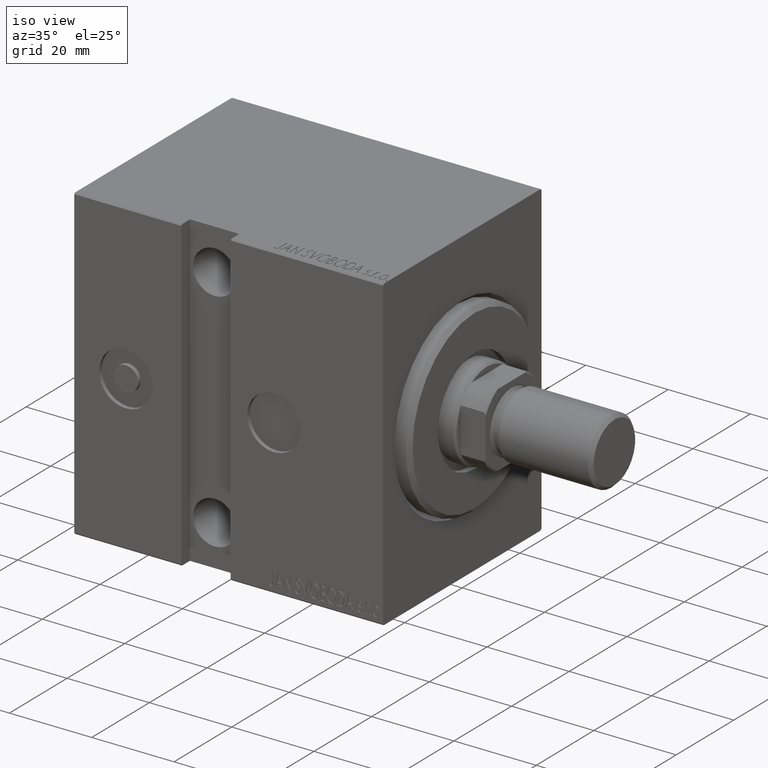
[diagram: clean part render]
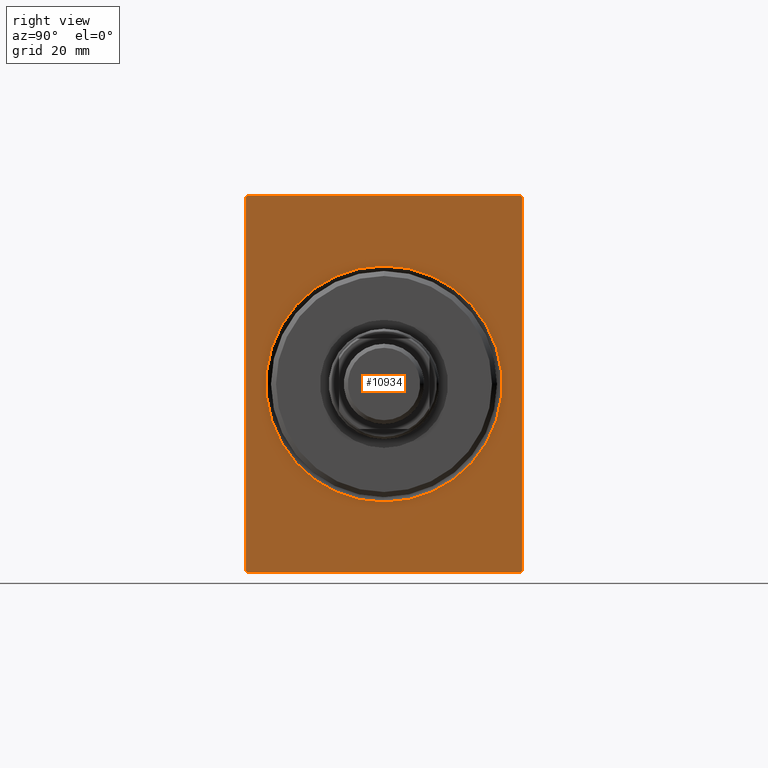
[diagram: tour spotlight — one face highlighted and labeled with its STEP entity id]
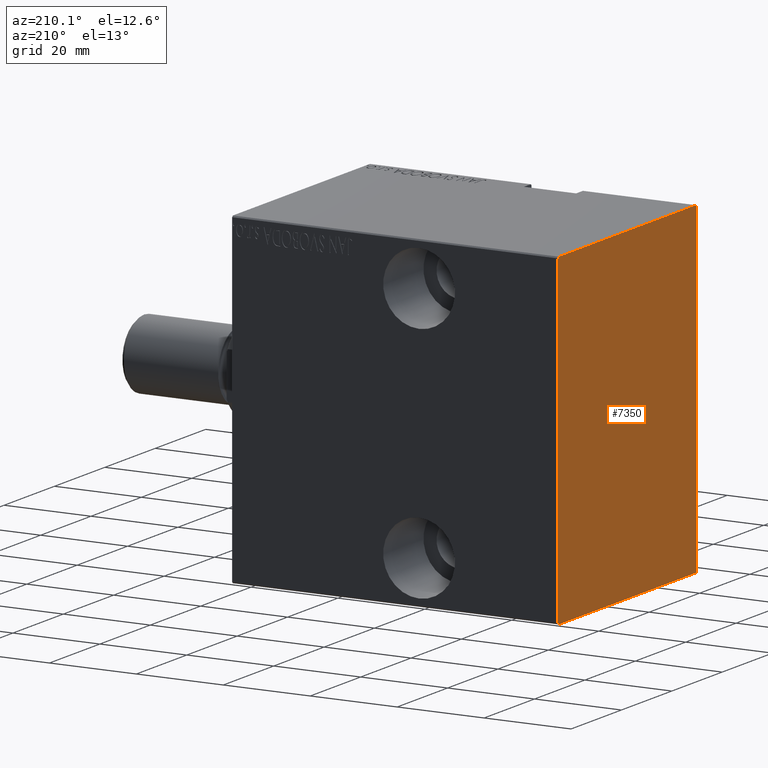
[diagram: tour spotlight — one face highlighted and labeled with its STEP entity id]
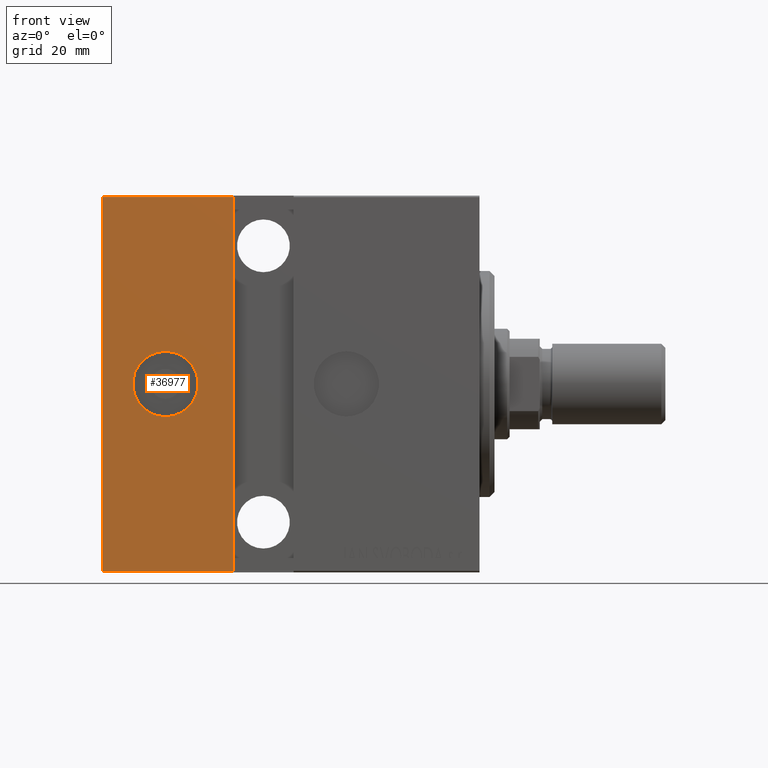
[diagram: tour spotlight — one face highlighted and labeled with its STEP entity id]
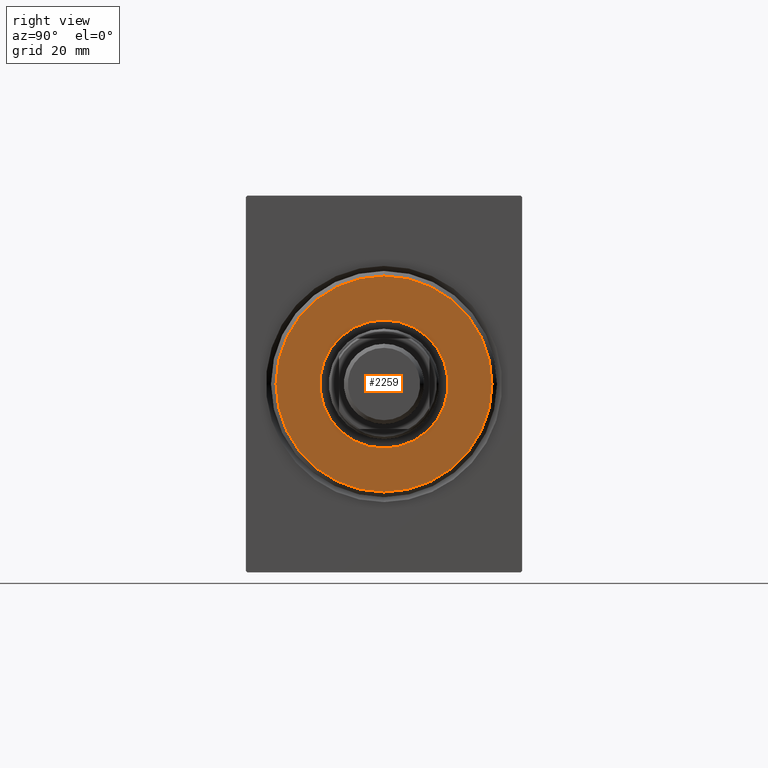
[diagram: tour spotlight — one face highlighted and labeled with its STEP entity id]
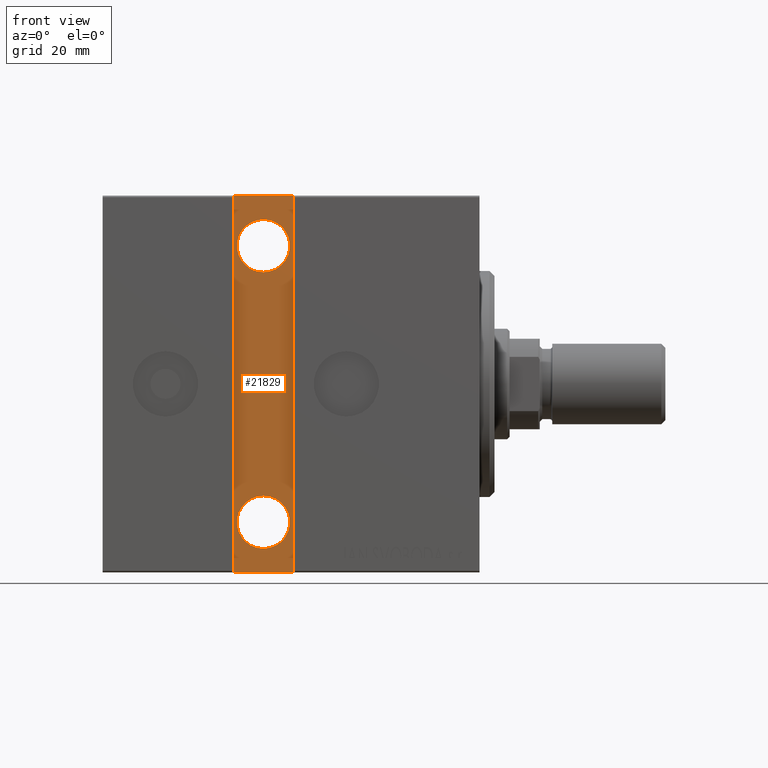
[diagram: tour spotlight — one face highlighted and labeled with its STEP entity id]
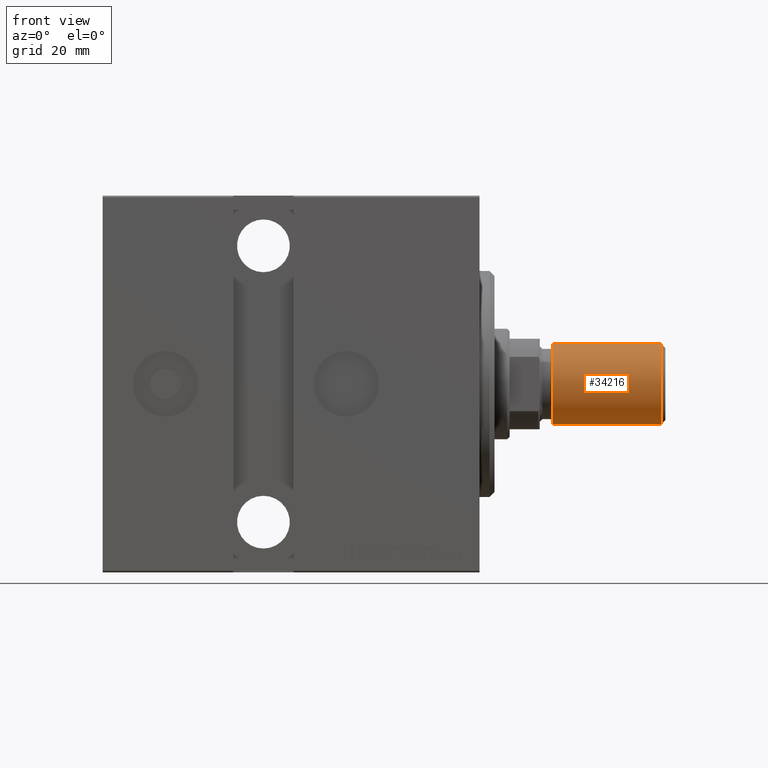
[diagram: tour spotlight — one face highlighted and labeled with its STEP entity id]
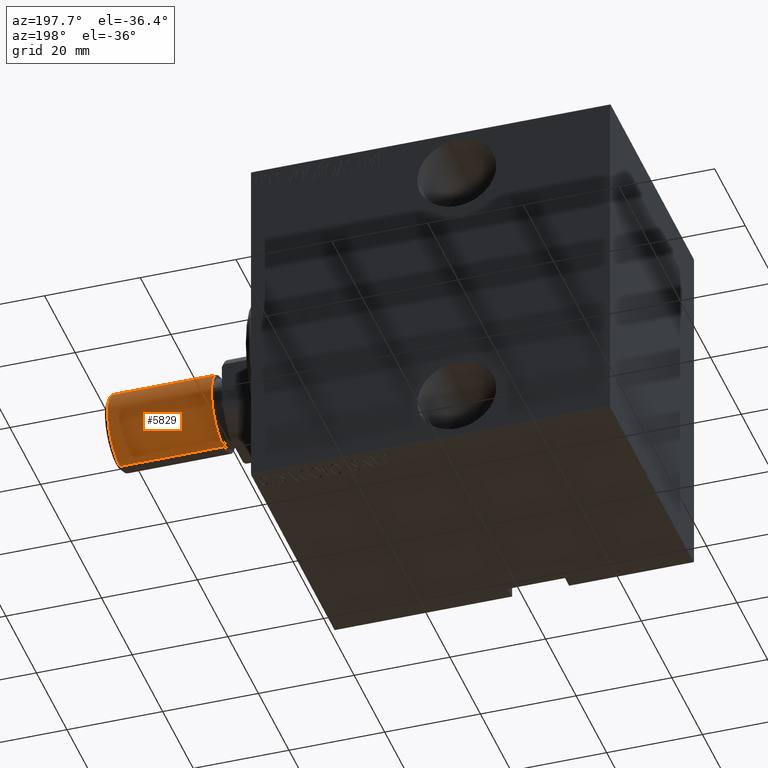
[diagram: tour spotlight — one face highlighted and labeled with its STEP entity id]
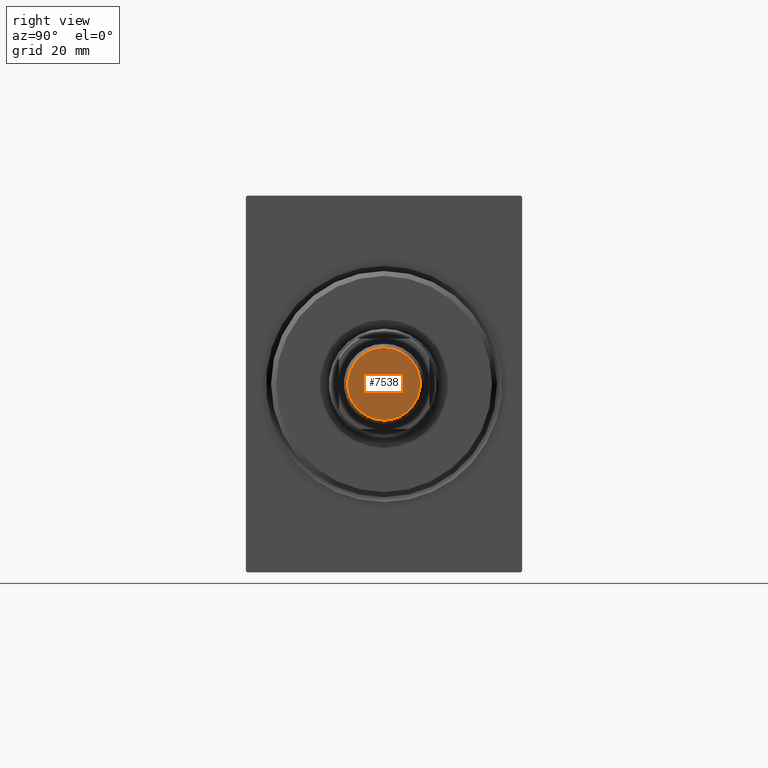
[diagram: tour spotlight — one face highlighted and labeled with its STEP entity id]
A machine part: a face-by-face anatomy tour. The part has 849 B-rep faces; the first image is the clean iso view, then the 8 largest visible faces are spotlighted one at a time (largest first), each with its STEP entity span.

Face 1 — right view, entity #10934. In plain terms, the highlighted planar face has unit normal (-1, 0, 0).
Definition (entity closure, byte-faithful):
#335 = EDGE_CURVE ( 'NONE', #26529, #32329, #24672, .T. ) ;
#1314 = CIRCLE ( 'NONE', #28339, 23.50000000000000355 ) ;
#1764 = CARTESIAN_POINT ( 'NONE',  ( 0.000000000000000000, -27.50000000000000000, -37.19999999999999574 ) ) ;
#1855 = DIRECTION ( 'NONE',  ( 0.000000000000000000, 0.000000000000000000, -1.000000000000000000 ) ) ;
#2099 = CARTESIAN_POINT ( 'NONE',  ( 0.000000000000000000, 2.877919977996280715E-15, -23.50000000000000355 ) ) ;
#2101 = CARTESIAN_POINT ( 'NONE',  ( 0.000000000000000000, 27.50000000000000355, -37.50000000000000711 ) ) ;
#2388 = DIRECTION ( 'NONE',  ( 0.000000000000000000, 1.000000000000000000, 0.000000000000000000 ) ) ;
#2513 = CARTESIAN_POINT ( 'NONE',  ( 0.000000000000000000, -27.50000000000000000, 37.49999999999999289 ) ) ;
#2559 = DIRECTION ( 'NONE',  ( 0.000000000000000000, 0.000000000000000000, -1.000000000000000000 ) ) ;
#2756 = LINE ( 'NONE', #2101, #35968 ) ;
#2776 = FACE_OUTER_BOUND ( 'NONE', #27650, .T. ) ;
#2992 = LINE ( 'NONE', #29488, #7590 ) ;
#3783 = CARTESIAN_POINT ( 'NONE',  ( 0.000000000000000000, 0.000000000000000000, 0.000000000000000000 ) ) ;
#3858 = CARTESIAN_POINT ( 'NONE',  ( 0.000000000000000000, -27.50000000000000000, 37.19999999999999574 ) ) ;
#4034 = AXIS2_PLACEMENT_3D ( 'NONE', #3783, #33740, #20085 ) ;
#4245 = ORIENTED_EDGE ( 'NONE', *, *, #37723, .T. ) ;
#5083 = ORIENTED_EDGE ( 'NONE', *, *, #32997, .T. ) ;
#5126 = ORIENTED_EDGE ( 'NONE', *, *, #335, .F. ) ;
#5314 = CARTESIAN_POINT ( 'NONE',  ( 0.000000000000000000, 27.20000000000000284, 37.50000000000000711 ) ) ;
#5351 = LINE ( 'NONE', #38338, #22052 ) ;
#5545 = LINE ( 'NONE', #19422, #33931 ) ;
#5777 = ORIENTED_EDGE ( 'NONE', *, *, #11828, .T. ) ;
#6204 = VERTEX_POINT ( 'NONE', #39320 ) ;
#6483 = EDGE_CURVE ( 'NONE', #39862, #36411, #26264, .T. ) ;
#7104 = ORIENTED_EDGE ( 'NONE', *, *, #35398, .T. ) ;
#7229 = EDGE_CURVE ( 'NONE', #6204, #36411, #37370, .T. ) ;
#7590 = VECTOR ( 'NONE', #42715, 999.9999999999998863 ) ;
#7991 = DIRECTION ( 'NONE',  ( -0.000000000000000000, 0.7071067811865474617, -0.7071067811865474617 ) ) ;
#9986 = CARTESIAN_POINT ( 'NONE',  ( 0.000000000000000000, -27.20000000000000284, 37.49999999999999289 ) ) ;
#10157 = CARTESIAN_POINT ( 'NONE',  ( 0.000000000000000000, 0.000000000000000000, 0.000000000000000000 ) ) ;
#10934 = ADVANCED_FACE ( 'NONE', ( #42271, #2776 ), #12963, .F. ) ;
#11286 = VERTEX_POINT ( 'NONE', #31344 ) ;
#11760 = CARTESIAN_POINT ( 'NONE',  ( 0.000000000000000000, 0.000000000000000000, 23.50000000000000355 ) ) ;
#11828 = EDGE_CURVE ( 'NONE', #26529, #37636, #2992, .T. ) ;
#12370 = CIRCLE ( 'NONE', #4034, 23.50000000000000355 ) ;
#12963 = PLANE ( 'NONE',  #13909 ) ;
#13909 = AXIS2_PLACEMENT_3D ( 'NONE', #10157, #32518, #2559 ) ;
#14396 = EDGE_LOOP ( 'NONE', ( #37574, #7104 ) ) ;
#15118 = DIRECTION ( 'NONE',  ( -0.000000000000000000, -0.7071067811865474617, 0.7071067811865474617 ) ) ;
#15546 = VECTOR ( 'NONE', #1855, 1000.000000000000000 ) ;
#15740 = DIRECTION ( 'NONE',  ( 0.000000000000000000, -1.000000000000000000, -2.523234146875355998E-16 ) ) ;
#16222 = CARTESIAN_POINT ( 'NONE',  ( 0.000000000000000000, 27.20000000000000284, 37.50000000000000711 ) ) ;
#17201 = CARTESIAN_POINT ( 'NONE',  ( 0.000000000000000000, 27.50000000000000355, -37.19999999999999574 ) ) ;
#17935 = EDGE_CURVE ( 'NONE', #36242, #37636, #5545, .T. ) ;
#19422 = CARTESIAN_POINT ( 'NONE',  ( 0.000000000000000000, 27.49999999999999645, 37.50000000000000711 ) ) ;
#19457 = DIRECTION ( 'NONE',  ( 1.000000000000000000, 0.000000000000000000, 0.000000000000000000 ) ) ;
#19787 = VERTEX_POINT ( 'NONE', #2099 ) ;
#20043 = VERTEX_POINT ( 'NONE', #11760 ) ;
#20085 = DIRECTION ( 'NONE',  ( 0.000000000000000000, 0.000000000000000000, -1.000000000000000000 ) ) ;
#22052 = VECTOR ( 'NONE', #15118, 1000.000000000000114 ) ;
#23035 = VECTOR ( 'NONE', #2388, 1000.000000000000000 ) ;
#23462 = CARTESIAN_POINT ( 'NONE',  ( 0.000000000000000000, -27.19999999999999218, -37.50000000000000711 ) ) ;
#23492 = VECTOR ( 'NONE', #7991, 1000.000000000000114 ) ;
#24672 = LINE ( 'NONE', #2513, #15546 ) ;
#26264 = LINE ( 'NONE', #41880, #23035 ) ;
#26477 = ORIENTED_EDGE ( 'NONE', *, *, #33828, .F. ) ;
#26529 = VERTEX_POINT ( 'NONE', #3858 ) ;
#26618 = CARTESIAN_POINT ( 'NONE',  ( 0.000000000000000000, 0.000000000000000000, 0.000000000000000000 ) ) ;
#26819 = ORIENTED_EDGE ( 'NONE', *, *, #7229, .T. ) ;
#27650 = EDGE_LOOP ( 'NONE', ( #32471, #4245, #26477, #26819, #29920, #5083, #5126, #5777 ) ) ;
#28339 = AXIS2_PLACEMENT_3D ( 'NONE', #26618, #19457, #38985 ) ;
#29488 = CARTESIAN_POINT ( 'NONE',  ( 0.000000000000000000, -27.50000000000000000, 37.19999999999999574 ) ) ;
#29920 = ORIENTED_EDGE ( 'NONE', *, *, #6483, .F. ) ;
#31344 = CARTESIAN_POINT ( 'NONE',  ( 0.000000000000000000, 27.49999999999999645, 37.20000000000000995 ) ) ;
#32329 = VERTEX_POINT ( 'NONE', #1764 ) ;
#32471 = ORIENTED_EDGE ( 'NONE', *, *, #17935, .F. ) ;
#32518 = DIRECTION ( 'NONE',  ( 1.000000000000000000, 0.000000000000000000, 0.000000000000000000 ) ) ;
#32997 = EDGE_CURVE ( 'NONE', #39862, #32329, #5351, .T. ) ;
#33740 = DIRECTION ( 'NONE',  ( 1.000000000000000000, 0.000000000000000000, 0.000000000000000000 ) ) ;
#33828 = EDGE_CURVE ( 'NONE', #6204, #11286, #2756, .T. ) ;
#33931 = VECTOR ( 'NONE', #15740, 1000.000000000000000 ) ;
#34058 = LINE ( 'NONE', #5314, #23492 ) ;
#35398 = EDGE_CURVE ( 'NONE', #19787, #20043, #1314, .T. ) ;
#35968 = VECTOR ( 'NONE', #42467, 1000.000000000000000 ) ;
#36242 = VERTEX_POINT ( 'NONE', #16222 ) ;
#36411 = VERTEX_POINT ( 'NONE', #41114 ) ;
#36917 = VECTOR ( 'NONE', #40826, 1000.000000000000000 ) ;
#37370 = LINE ( 'NONE', #17201, #36917 ) ;
#37574 = ORIENTED_EDGE ( 'NONE', *, *, #37859, .T. ) ;
#37636 = VERTEX_POINT ( 'NONE', #9986 ) ;
#37723 = EDGE_CURVE ( 'NONE', #36242, #11286, #34058, .T. ) ;
#37859 = EDGE_CURVE ( 'NONE', #20043, #19787, #12370, .T. ) ;
#38338 = CARTESIAN_POINT ( 'NONE',  ( 0.000000000000000000, -27.19999999999999218, -37.50000000000000711 ) ) ;
#38985 = DIRECTION ( 'NONE',  ( 0.000000000000000000, 0.000000000000000000, -1.000000000000000000 ) ) ;
#39320 = CARTESIAN_POINT ( 'NONE',  ( 0.000000000000000000, 27.50000000000000355, -37.19999999999999574 ) ) ;
#39862 = VERTEX_POINT ( 'NONE', #23462 ) ;
#40826 = DIRECTION ( 'NONE',  ( 0.000000000000000000, -0.7071067811865434649, -0.7071067811865516806 ) ) ;
#41114 = CARTESIAN_POINT ( 'NONE',  ( 0.000000000000000000, 27.19999999999999929, -37.50000000000000711 ) ) ;
#41880 = CARTESIAN_POINT ( 'NONE',  ( 0.000000000000000000, -27.50000000000000000, -37.50000000000000711 ) ) ;
#42271 = FACE_BOUND ( 'NONE', #14396, .T. ) ;
#42467 = DIRECTION ( 'NONE',  ( 0.000000000000000000, -9.251858538542970348E-17, 1.000000000000000000 ) ) ;
#42715 = DIRECTION ( 'NONE',  ( -0.000000000000000000, 0.7071067811865515695, 0.7071067811865435759 ) ) ;

Face 2 — auxiliary view, entity #7350. In plain terms, the highlighted planar face has unit normal (-1, 0, 0).
Definition (entity closure, byte-faithful):
#884 = LINE ( 'NONE', #13924, #16542 ) ;
#1656 = VERTEX_POINT ( 'NONE', #5459 ) ;
#3898 = CARTESIAN_POINT ( 'NONE',  ( 75.00000000000000000, 27.49999999999999645, 37.50000000000000711 ) ) ;
#4580 = PLANE ( 'NONE',  #23754 ) ;
#4880 = DIRECTION ( 'NONE',  ( -0.000000000000000000, -0.7071067811865474617, 0.7071067811865474617 ) ) ;
#5224 = CARTESIAN_POINT ( 'NONE',  ( 75.00000000000000000, 0.000000000000000000, 0.000000000000000000 ) ) ;
#5225 = CARTESIAN_POINT ( 'NONE',  ( 75.00000000000000000, 27.50000000000000355, -37.19999999999999574 ) ) ;
#5459 = CARTESIAN_POINT ( 'NONE',  ( 75.00000000000000000, -27.50000000000000000, -37.19999999999999574 ) ) ;
#6072 = ORIENTED_EDGE ( 'NONE', *, *, #26331, .T. ) ;
#6209 = ORIENTED_EDGE ( 'NONE', *, *, #18075, .T. ) ;
#6434 = DIRECTION ( 'NONE',  ( 0.000000000000000000, -9.251858538542970348E-17, 1.000000000000000000 ) ) ;
#6565 = DIRECTION ( 'NONE',  ( -0.000000000000000000, 0.7071067811865434649, 0.7071067811865516806 ) ) ;
#6838 = DIRECTION ( 'NONE',  ( 0.000000000000000000, 0.000000000000000000, -1.000000000000000000 ) ) ;
#7350 = ADVANCED_FACE ( 'NONE', ( #11945 ), #4580, .T. ) ;
#8035 = CARTESIAN_POINT ( 'NONE',  ( 75.00000000000000000, 27.20000000000000284, 37.50000000000000711 ) ) ;
#8312 = VERTEX_POINT ( 'NONE', #39605 ) ;
#8721 = EDGE_LOOP ( 'NONE', ( #6072, #9455, #35467, #9899, #39470, #32428, #6209, #30997 ) ) ;
#9455 = ORIENTED_EDGE ( 'NONE', *, *, #37398, .T. ) ;
#9649 = VERTEX_POINT ( 'NONE', #15977 ) ;
#9899 = ORIENTED_EDGE ( 'NONE', *, *, #22792, .T. ) ;
#10119 = CARTESIAN_POINT ( 'NONE',  ( 75.00000000000000000, 27.50000000000000355, -37.50000000000000711 ) ) ;
#10163 = CARTESIAN_POINT ( 'NONE',  ( 75.00000000000000000, -32.34999999999983800, 32.35000000000021458 ) ) ;
#10845 = LINE ( 'NONE', #3898, #17953 ) ;
#11728 = DIRECTION ( 'NONE',  ( 0.000000000000000000, 0.000000000000000000, -1.000000000000000000 ) ) ;
#11796 = EDGE_CURVE ( 'NONE', #19923, #9649, #39229, .T. ) ;
#11945 = FACE_OUTER_BOUND ( 'NONE', #8721, .T. ) ;
#12188 = VECTOR ( 'NONE', #35785, 1000.000000000000000 ) ;
#13137 = VECTOR ( 'NONE', #6838, 1000.000000000000000 ) ;
#13687 = CARTESIAN_POINT ( 'NONE',  ( 75.00000000000000000, -32.34999999999999432, -32.34999999999999432 ) ) ;
#13924 = CARTESIAN_POINT ( 'NONE',  ( 75.00000000000000000, 32.35000000000016485, -32.34999999999978826 ) ) ;
#14883 = VECTOR ( 'NONE', #4880, 1000.000000000000114 ) ;
#15781 = CARTESIAN_POINT ( 'NONE',  ( 75.00000000000000000, -27.20000000000000284, 37.49999999999999289 ) ) ;
#15977 = CARTESIAN_POINT ( 'NONE',  ( 75.00000000000000000, -27.50000000000000000, 37.19999999999999574 ) ) ;
#16542 = VECTOR ( 'NONE', #6565, 1000.000000000000000 ) ;
#17953 = VECTOR ( 'NONE', #20617, 1000.000000000000000 ) ;
#18075 = EDGE_CURVE ( 'NONE', #9649, #1656, #39813, .T. ) ;
#19343 = VERTEX_POINT ( 'NONE', #39085 ) ;
#19498 = DIRECTION ( 'NONE',  ( 0.000000000000000000, -0.7071067811865515695, -0.7071067811865435759 ) ) ;
#19923 = VERTEX_POINT ( 'NONE', #15781 ) ;
#20617 = DIRECTION ( 'NONE',  ( 0.000000000000000000, -1.000000000000000000, -2.523234146875355998E-16 ) ) ;
#21135 = EDGE_CURVE ( 'NONE', #1656, #8312, #36494, .T. ) ;
#21521 = DIRECTION ( 'NONE',  ( 1.000000000000000000, 0.000000000000000000, 0.000000000000000000 ) ) ;
#22025 = CARTESIAN_POINT ( 'NONE',  ( 75.00000000000000000, 32.35000000000000142, 32.35000000000000142 ) ) ;
#22792 = EDGE_CURVE ( 'NONE', #31594, #23297, #28540, .T. ) ;
#23297 = VERTEX_POINT ( 'NONE', #8035 ) ;
#23754 = AXIS2_PLACEMENT_3D ( 'NONE', #5224, #21521, #11728 ) ;
#24063 = VERTEX_POINT ( 'NONE', #5225 ) ;
#24549 = EDGE_CURVE ( 'NONE', #24063, #31594, #36388, .T. ) ;
#26331 = EDGE_CURVE ( 'NONE', #8312, #19343, #40784, .T. ) ;
#26715 = VECTOR ( 'NONE', #6434, 1000.000000000000000 ) ;
#26990 = VECTOR ( 'NONE', #19498, 999.9999999999998863 ) ;
#28540 = LINE ( 'NONE', #22025, #14883 ) ;
#29339 = DIRECTION ( 'NONE',  ( -0.000000000000000000, 0.7071067811865474617, -0.7071067811865474617 ) ) ;
#30997 = ORIENTED_EDGE ( 'NONE', *, *, #21135, .T. ) ;
#31594 = VERTEX_POINT ( 'NONE', #35659 ) ;
#32428 = ORIENTED_EDGE ( 'NONE', *, *, #11796, .T. ) ;
#35467 = ORIENTED_EDGE ( 'NONE', *, *, #24549, .T. ) ;
#35571 = CARTESIAN_POINT ( 'NONE',  ( 75.00000000000000000, -27.50000000000000000, -37.50000000000000711 ) ) ;
#35659 = CARTESIAN_POINT ( 'NONE',  ( 75.00000000000000000, 27.49999999999999645, 37.20000000000000995 ) ) ;
#35785 = DIRECTION ( 'NONE',  ( 0.000000000000000000, 1.000000000000000000, 0.000000000000000000 ) ) ;
#36388 = LINE ( 'NONE', #10119, #26715 ) ;
#36391 = VECTOR ( 'NONE', #29339, 1000.000000000000114 ) ;
#36494 = LINE ( 'NONE', #13687, #36391 ) ;
#36579 = CARTESIAN_POINT ( 'NONE',  ( 75.00000000000000000, -27.50000000000000000, 37.49999999999999289 ) ) ;
#37398 = EDGE_CURVE ( 'NONE', #19343, #24063, #884, .T. ) ;
#39085 = CARTESIAN_POINT ( 'NONE',  ( 75.00000000000000000, 27.19999999999999929, -37.50000000000000711 ) ) ;
#39229 = LINE ( 'NONE', #10163, #26990 ) ;
#39350 = EDGE_CURVE ( 'NONE', #23297, #19923, #10845, .T. ) ;
#39470 = ORIENTED_EDGE ( 'NONE', *, *, #39350, .T. ) ;
#39605 = CARTESIAN_POINT ( 'NONE',  ( 75.00000000000000000, -27.19999999999999218, -37.50000000000000711 ) ) ;
#39813 = LINE ( 'NONE', #36579, #13137 ) ;
#40784 = LINE ( 'NONE', #35571, #12188 ) ;

Face 3 — front view, entity #36977. In plain terms, the highlighted planar face has unit normal (-0, 1, -0).
Definition (entity closure, byte-faithful):
#85 = DIRECTION ( 'NONE',  ( 0.000000000000000000, 9.251858538542970348E-17, -1.000000000000000000 ) ) ;
#90 = DIRECTION ( 'NONE',  ( 6.162975822039154730E-33, 1.000000000000000000, 8.767205616560546857E-17 ) ) ;
#3620 = CARTESIAN_POINT ( 'NONE',  ( 75.00000000000000000, 27.49999999999999645, 37.20000000000000995 ) ) ;
#4506 = CIRCLE ( 'NONE', #21151, 6.499999999999994671 ) ;
#5225 = CARTESIAN_POINT ( 'NONE',  ( 75.00000000000000000, 27.50000000000000355, -37.19999999999999574 ) ) ;
#5324 = VERTEX_POINT ( 'NONE', #25884 ) ;
#5367 = ORIENTED_EDGE ( 'NONE', *, *, #23560, .F. ) ;
#6434 = DIRECTION ( 'NONE',  ( 0.000000000000000000, -9.251858538542970348E-17, 1.000000000000000000 ) ) ;
#7978 = ORIENTED_EDGE ( 'NONE', *, *, #18468, .F. ) ;
#8457 = EDGE_LOOP ( 'NONE', ( #37175, #24392, #7978, #32414 ) ) ;
#10119 = CARTESIAN_POINT ( 'NONE',  ( 75.00000000000000000, 27.50000000000000355, -37.50000000000000711 ) ) ;
#13152 = CARTESIAN_POINT ( 'NONE',  ( 75.00000000000000000, 27.50000000000000355, -37.19999999999999574 ) ) ;
#14180 = FACE_BOUND ( 'NONE', #31067, .T. ) ;
#14641 = EDGE_CURVE ( 'NONE', #5324, #31594, #33380, .T. ) ;
#16596 = PLANE ( 'NONE',  #25614 ) ;
#16790 = EDGE_CURVE ( 'NONE', #28130, #19236, #38061, .T. ) ;
#16813 = VERTEX_POINT ( 'NONE', #32930 ) ;
#16867 = DIRECTION ( 'NONE',  ( 0.000000000000000000, 0.000000000000000000, 1.000000000000000000 ) ) ;
#17267 = DIRECTION ( 'NONE',  ( -1.000000000000000000, 0.000000000000000000, 0.000000000000000000 ) ) ;
#18468 = EDGE_CURVE ( 'NONE', #5324, #16813, #29768, .T. ) ;
#19236 = VERTEX_POINT ( 'NONE', #25214 ) ;
#19331 = DIRECTION ( 'NONE',  ( -9.251858538542978977E-17, -0.000000000000000000, -1.000000000000000000 ) ) ;
#20286 = CARTESIAN_POINT ( 'NONE',  ( 75.00000000000000000, 27.50000000000000355, -37.50000000000000711 ) ) ;
#21151 = AXIS2_PLACEMENT_3D ( 'NONE', #32880, #90, #33097 ) ;
#22393 = CARTESIAN_POINT ( 'NONE',  ( 48.99999999999999289, 27.50000000000000000, -37.50000000000000711 ) ) ;
#23545 = FACE_OUTER_BOUND ( 'NONE', #8457, .T. ) ;
#23560 = EDGE_CURVE ( 'NONE', #19236, #28130, #4506, .T. ) ;
#24063 = VERTEX_POINT ( 'NONE', #5225 ) ;
#24392 = ORIENTED_EDGE ( 'NONE', *, *, #41374, .T. ) ;
#24549 = EDGE_CURVE ( 'NONE', #24063, #31594, #36388, .T. ) ;
#25214 = CARTESIAN_POINT ( 'NONE',  ( 62.49999999999999289, 27.50000000000000000, -6.499999999999992006 ) ) ;
#25614 = AXIS2_PLACEMENT_3D ( 'NONE', #20286, #29847, #85 ) ;
#25653 = VECTOR ( 'NONE', #19331, 1000.000000000000000 ) ;
#25884 = CARTESIAN_POINT ( 'NONE',  ( 49.00000000000000000, 27.50000000000000000, 37.20000000000000995 ) ) ;
#26715 = VECTOR ( 'NONE', #6434, 1000.000000000000000 ) ;
#26845 = CARTESIAN_POINT ( 'NONE',  ( 62.49999999999999289, 27.50000000000000000, 2.544261098099316809E-15 ) ) ;
#28130 = VERTEX_POINT ( 'NONE', #32378 ) ;
#28287 = VECTOR ( 'NONE', #30122, 1000.000000000000000 ) ;
#29768 = LINE ( 'NONE', #22393, #25653 ) ;
#29847 = DIRECTION ( 'NONE',  ( 0.000000000000000000, -1.000000000000000000, -9.251858538542970348E-17 ) ) ;
#30122 = DIRECTION ( 'NONE',  ( 1.000000000000000000, 0.000000000000000000, 0.000000000000000000 ) ) ;
#31067 = EDGE_LOOP ( 'NONE', ( #35006, #5367 ) ) ;
#31594 = VERTEX_POINT ( 'NONE', #35659 ) ;
#32378 = CARTESIAN_POINT ( 'NONE',  ( 62.49999999999999289, 27.50000000000000000, 6.499999999999997335 ) ) ;
#32414 = ORIENTED_EDGE ( 'NONE', *, *, #14641, .T. ) ;
#32586 = VECTOR ( 'NONE', #17267, 1000.000000000000000 ) ;
#32880 = CARTESIAN_POINT ( 'NONE',  ( 62.49999999999999289, 27.50000000000000000, 2.544261098099316809E-15 ) ) ;
#32930 = CARTESIAN_POINT ( 'NONE',  ( 48.99999999999999289, 27.50000000000000000, -37.19999999999999574 ) ) ;
#33097 = DIRECTION ( 'NONE',  ( 0.000000000000000000, 0.000000000000000000, 1.000000000000000000 ) ) ;
#33380 = LINE ( 'NONE', #3620, #28287 ) ;
#33761 = LINE ( 'NONE', #13152, #32586 ) ;
#35006 = ORIENTED_EDGE ( 'NONE', *, *, #16790, .F. ) ;
#35281 = AXIS2_PLACEMENT_3D ( 'NONE', #26845, #36842, #16867 ) ;
#35659 = CARTESIAN_POINT ( 'NONE',  ( 75.00000000000000000, 27.49999999999999645, 37.20000000000000995 ) ) ;
#36388 = LINE ( 'NONE', #10119, #26715 ) ;
#36842 = DIRECTION ( 'NONE',  ( 6.162975822039154730E-33, 1.000000000000000000, 8.767205616560546857E-17 ) ) ;
#36977 = ADVANCED_FACE ( 'NONE', ( #14180, #23545 ), #16596, .F. ) ;
#37175 = ORIENTED_EDGE ( 'NONE', *, *, #24549, .F. ) ;
#38061 = CIRCLE ( 'NONE', #35281, 6.499999999999994671 ) ;
#41374 = EDGE_CURVE ( 'NONE', #24063, #16813, #33761, .T. ) ;

Face 4 — right view, entity #2259. In plain terms, the highlighted planar face has unit normal (1, 0, 0).
Definition (entity closure, byte-faithful):
#113 = CARTESIAN_POINT ( 'NONE',  ( 3.000000000000000000, 2.694222958124176415E-15, -21.49999999999998579 ) ) ;
#381 = EDGE_CURVE ( 'NONE', #34120, #30704, #11385, .T. ) ;
#382 = CARTESIAN_POINT ( 'NONE',  ( 3.000000000000000000, 0.000000000000000000, 21.49999999999998579 ) ) ;
#2038 = DIRECTION ( 'NONE',  ( 1.000000000000000000, -0.000000000000000000, 0.000000000000000000 ) ) ;
#2259 = ADVANCED_FACE ( 'NONE', ( #17903, #18115 ), #8352, .T. ) ;
#4444 = AXIS2_PLACEMENT_3D ( 'NONE', #5562, #18792, #25744 ) ;
#4567 = AXIS2_PLACEMENT_3D ( 'NONE', #37132, #17591, #24323 ) ;
#4656 = DIRECTION ( 'NONE',  ( 0.000000000000000000, 0.000000000000000000, -1.000000000000000000 ) ) ;
#4681 = EDGE_CURVE ( 'NONE', #30704, #34120, #5632, .T. ) ;
#5562 = CARTESIAN_POINT ( 'NONE',  ( 3.000000000000000000, 0.000000000000000000, 0.000000000000000000 ) ) ;
#5632 = CIRCLE ( 'NONE', #35454, 12.75000000000000000 ) ;
#8352 = PLANE ( 'NONE',  #30827 ) ;
#10102 = EDGE_LOOP ( 'NONE', ( #37717, #40796 ) ) ;
#10140 = CIRCLE ( 'NONE', #4567, 21.49999999999998579 ) ;
#11210 = VERTEX_POINT ( 'NONE', #113 ) ;
#11385 = CIRCLE ( 'NONE', #4444, 12.75000000000000000 ) ;
#14150 = AXIS2_PLACEMENT_3D ( 'NONE', #28007, #41224, #24746 ) ;
#15143 = DIRECTION ( 'NONE',  ( -1.000000000000000000, 0.000000000000000000, -0.000000000000000000 ) ) ;
#16312 = ORIENTED_EDGE ( 'NONE', *, *, #4681, .T. ) ;
#16595 = CARTESIAN_POINT ( 'NONE',  ( 3.000000000000000000, 1.561424668912874914E-15, -12.75000000000000000 ) ) ;
#17296 = ORIENTED_EDGE ( 'NONE', *, *, #381, .T. ) ;
#17591 = DIRECTION ( 'NONE',  ( 1.000000000000000000, -0.000000000000000000, 0.000000000000000000 ) ) ;
#17903 = FACE_OUTER_BOUND ( 'NONE', #10102, .T. ) ;
#18115 = FACE_BOUND ( 'NONE', #31353, .T. ) ;
#18792 = DIRECTION ( 'NONE',  ( -1.000000000000000000, 0.000000000000000000, -0.000000000000000000 ) ) ;
#20302 = EDGE_CURVE ( 'NONE', #11210, #40919, #31563, .T. ) ;
#21163 = CARTESIAN_POINT ( 'NONE',  ( 3.000000000000000000, 0.000000000000000000, 0.000000000000000000 ) ) ;
#22583 = CARTESIAN_POINT ( 'NONE',  ( 3.000000000000000000, 0.000000000000000000, 12.75000000000000000 ) ) ;
#24323 = DIRECTION ( 'NONE',  ( 0.000000000000000000, 0.000000000000000000, -1.000000000000000000 ) ) ;
#24746 = DIRECTION ( 'NONE',  ( 0.000000000000000000, 0.000000000000000000, -1.000000000000000000 ) ) ;
#25744 = DIRECTION ( 'NONE',  ( 0.000000000000000000, 0.000000000000000000, -1.000000000000000000 ) ) ;
#26156 = EDGE_CURVE ( 'NONE', #40919, #11210, #10140, .T. ) ;
#28007 = CARTESIAN_POINT ( 'NONE',  ( 3.000000000000000000, 0.000000000000000000, 0.000000000000000000 ) ) ;
#30704 = VERTEX_POINT ( 'NONE', #22583 ) ;
#30827 = AXIS2_PLACEMENT_3D ( 'NONE', #21163, #2038, #4656 ) ;
#31353 = EDGE_LOOP ( 'NONE', ( #16312, #17296 ) ) ;
#31563 = CIRCLE ( 'NONE', #14150, 21.49999999999998579 ) ;
#34120 = VERTEX_POINT ( 'NONE', #16595 ) ;
#35454 = AXIS2_PLACEMENT_3D ( 'NONE', #38361, #15143, #41609 ) ;
#37132 = CARTESIAN_POINT ( 'NONE',  ( 3.000000000000000000, 0.000000000000000000, 0.000000000000000000 ) ) ;
#37717 = ORIENTED_EDGE ( 'NONE', *, *, #26156, .T. ) ;
#38361 = CARTESIAN_POINT ( 'NONE',  ( 3.000000000000000000, 0.000000000000000000, 0.000000000000000000 ) ) ;
#40796 = ORIENTED_EDGE ( 'NONE', *, *, #20302, .T. ) ;
#40919 = VERTEX_POINT ( 'NONE', #382 ) ;
#41224 = DIRECTION ( 'NONE',  ( 1.000000000000000000, -0.000000000000000000, 0.000000000000000000 ) ) ;
#41609 = DIRECTION ( 'NONE',  ( 0.000000000000000000, 0.000000000000000000, -1.000000000000000000 ) ) ;

Face 5 — front view, entity #21829. In plain terms, the highlighted planar face has unit normal (0, 1, 0).
Definition (entity closure, byte-faithful):
#45 = ORIENTED_EDGE ( 'NONE', *, *, #40793, .T. ) ;
#86 = CARTESIAN_POINT ( 'NONE',  ( 48.99999999999999289, 24.50000000000000000, -37.50000000000000711 ) ) ;
#301 = AXIS2_PLACEMENT_3D ( 'NONE', #10551, #23798, #24008 ) ;
#550 = PLANE ( 'NONE',  #301 ) ;
#704 = CARTESIAN_POINT ( 'NONE',  ( 43.00000000000001421, 24.50000000000000000, -27.50000000000000000 ) ) ;
#1833 = VECTOR ( 'NONE', #6400, 1000.000000000000000 ) ;
#2302 = CARTESIAN_POINT ( 'NONE',  ( 37.00000000000001421, 24.50000000000000000, 37.49999999999993605 ) ) ;
#2780 = CIRCLE ( 'NONE', #18699, 5.249999999999997335 ) ;
#2914 = DIRECTION ( 'NONE',  ( 0.000000000000000000, -1.000000000000000000, 0.000000000000000000 ) ) ;
#3582 = EDGE_LOOP ( 'NONE', ( #45, #30796 ) ) ;
#4804 = AXIS2_PLACEMENT_3D ( 'NONE', #704, #27831, #10491 ) ;
#6400 = DIRECTION ( 'NONE',  ( -1.000000000000000000, 0.000000000000000000, 0.000000000000000000 ) ) ;
#8366 = EDGE_CURVE ( 'NONE', #14300, #37019, #34170, .T. ) ;
#9225 = DIRECTION ( 'NONE',  ( 0.000000000000000000, 0.000000000000000000, -1.000000000000000000 ) ) ;
#10491 = DIRECTION ( 'NONE',  ( 0.000000000000000000, 0.000000000000000000, -1.000000000000000000 ) ) ;
#10551 = CARTESIAN_POINT ( 'NONE',  ( 0.000000000000000000, 24.50000000000000000, 0.000000000000000000 ) ) ;
#11740 = CARTESIAN_POINT ( 'NONE',  ( 37.00000000000000000, 24.50000000000000000, -37.50000000000000711 ) ) ;
#12140 = CARTESIAN_POINT ( 'NONE',  ( 43.00000000000001421, 24.50000000000000000, 27.50000000000000000 ) ) ;
#12472 = CIRCLE ( 'NONE', #24261, 5.249999999999994671 ) ;
#12504 = EDGE_CURVE ( 'NONE', #33198, #14015, #12472, .T. ) ;
#12867 = DIRECTION ( 'NONE',  ( 0.000000000000000000, 0.000000000000000000, -1.000000000000000000 ) ) ;
#13374 = EDGE_CURVE ( 'NONE', #23172, #14153, #2780, .T. ) ;
#14015 = VERTEX_POINT ( 'NONE', #27588 ) ;
#14153 = VERTEX_POINT ( 'NONE', #35382 ) ;
#14300 = VERTEX_POINT ( 'NONE', #20819 ) ;
#15457 = LINE ( 'NONE', #42358, #38556 ) ;
#15875 = ORIENTED_EDGE ( 'NONE', *, *, #21052, .T. ) ;
#16359 = DIRECTION ( 'NONE',  ( 0.000000000000000000, -1.000000000000000000, 0.000000000000000000 ) ) ;
#18484 = DIRECTION ( 'NONE',  ( 1.000000000000000000, -0.000000000000000000, -0.000000000000000000 ) ) ;
#18490 = CARTESIAN_POINT ( 'NONE',  ( 49.00000000000000000, 24.50000000000000355, -37.50000000000000711 ) ) ;
#18699 = AXIS2_PLACEMENT_3D ( 'NONE', #12140, #19086, #18863 ) ;
#18863 = DIRECTION ( 'NONE',  ( 0.000000000000000000, 0.000000000000000000, -1.000000000000000000 ) ) ;
#19086 = DIRECTION ( 'NONE',  ( 0.000000000000000000, -1.000000000000000000, 0.000000000000000000 ) ) ;
#20487 = EDGE_LOOP ( 'NONE', ( #15875, #40202, #21326, #27302 ) ) ;
#20819 = CARTESIAN_POINT ( 'NONE',  ( 49.00000000000000000, 24.50000000000000000, 37.49999999999993605 ) ) ;
#21052 = EDGE_CURVE ( 'NONE', #31363, #34683, #25422, .T. ) ;
#21326 = ORIENTED_EDGE ( 'NONE', *, *, #8366, .T. ) ;
#21380 = CARTESIAN_POINT ( 'NONE',  ( 43.00000000000001421, 24.50000000000000000, -32.74999999999999289 ) ) ;
#21829 = ADVANCED_FACE ( 'NONE', ( #30519, #36828, #30310 ), #550, .F. ) ;
#22254 = CARTESIAN_POINT ( 'NONE',  ( 43.00000000000001421, 24.50000000000000000, 27.50000000000000000 ) ) ;
#23070 = EDGE_LOOP ( 'NONE', ( #24816, #23759 ) ) ;
#23172 = VERTEX_POINT ( 'NONE', #25438 ) ;
#23218 = VECTOR ( 'NONE', #25646, 1000.000000000000000 ) ;
#23371 = AXIS2_PLACEMENT_3D ( 'NONE', #22254, #2914, #9225 ) ;
#23759 = ORIENTED_EDGE ( 'NONE', *, *, #28577, .T. ) ;
#23798 = DIRECTION ( 'NONE',  ( 0.000000000000000000, -1.000000000000000000, 0.000000000000000000 ) ) ;
#24008 = DIRECTION ( 'NONE',  ( 0.000000000000000000, -0.000000000000000000, -1.000000000000000000 ) ) ;
#24261 = AXIS2_PLACEMENT_3D ( 'NONE', #32855, #16359, #12867 ) ;
#24719 = CIRCLE ( 'NONE', #23371, 5.249999999999997335 ) ;
#24816 = ORIENTED_EDGE ( 'NONE', *, *, #13374, .T. ) ;
#25422 = LINE ( 'NONE', #11740, #23218 ) ;
#25438 = CARTESIAN_POINT ( 'NONE',  ( 43.00000000000001421, 24.50000000000000000, 32.74999999999999289 ) ) ;
#25646 = DIRECTION ( 'NONE',  ( 1.850371707708595795E-16, 0.000000000000000000, 1.000000000000000000 ) ) ;
#27232 = DIRECTION ( 'NONE',  ( -9.251858538542978977E-17, -0.000000000000000000, -1.000000000000000000 ) ) ;
#27234 = CARTESIAN_POINT ( 'NONE',  ( 37.00000000000000000, 24.50000000000000000, -37.50000000000000711 ) ) ;
#27302 = ORIENTED_EDGE ( 'NONE', *, *, #29110, .T. ) ;
#27588 = CARTESIAN_POINT ( 'NONE',  ( 43.00000000000001421, 24.50000000000000000, -22.25000000000000355 ) ) ;
#27831 = DIRECTION ( 'NONE',  ( 0.000000000000000000, -1.000000000000000000, 0.000000000000000000 ) ) ;
#28077 = EDGE_CURVE ( 'NONE', #34683, #14300, #15457, .T. ) ;
#28577 = EDGE_CURVE ( 'NONE', #14153, #23172, #24719, .T. ) ;
#29110 = EDGE_CURVE ( 'NONE', #37019, #31363, #40018, .T. ) ;
#30310 = FACE_OUTER_BOUND ( 'NONE', #20487, .T. ) ;
#30495 = CARTESIAN_POINT ( 'NONE',  ( 48.99999999999999289, 24.50000000000000000, -37.50000000000000711 ) ) ;
#30519 = FACE_BOUND ( 'NONE', #23070, .T. ) ;
#30796 = ORIENTED_EDGE ( 'NONE', *, *, #12504, .T. ) ;
#31363 = VERTEX_POINT ( 'NONE', #27234 ) ;
#32855 = CARTESIAN_POINT ( 'NONE',  ( 43.00000000000001421, 24.50000000000000000, -27.50000000000000000 ) ) ;
#33198 = VERTEX_POINT ( 'NONE', #21380 ) ;
#34170 = LINE ( 'NONE', #30495, #39000 ) ;
#34683 = VERTEX_POINT ( 'NONE', #2302 ) ;
#35382 = CARTESIAN_POINT ( 'NONE',  ( 43.00000000000001421, 24.50000000000000000, 22.25000000000000355 ) ) ;
#36828 = FACE_BOUND ( 'NONE', #3582, .T. ) ;
#37019 = VERTEX_POINT ( 'NONE', #18490 ) ;
#38556 = VECTOR ( 'NONE', #18484, 1000.000000000000000 ) ;
#39000 = VECTOR ( 'NONE', #27232, 1000.000000000000000 ) ;
#40018 = LINE ( 'NONE', #86, #1833 ) ;
#40202 = ORIENTED_EDGE ( 'NONE', *, *, #28077, .T. ) ;
#40793 = EDGE_CURVE ( 'NONE', #14015, #33198, #42235, .T. ) ;
#42235 = CIRCLE ( 'NONE', #4804, 5.249999999999994671 ) ;
#42358 = CARTESIAN_POINT ( 'NONE',  ( 49.00000000000000000, 24.50000000000000000, 37.49999999999993605 ) ) ;

Face 6 — front view, entity #34216. In plain terms, the highlighted cylindrical surface (partial cylindrical patch) has radius 8 mm, axis along (1, -0, -0).
Definition (entity closure, byte-faithful):
#1377 = DIRECTION ( 'NONE',  ( -0.000000000000000000, -0.000000000000000000, -1.000000000000000000 ) ) ;
#1411 = VECTOR ( 'NONE', #16077, 1000.000000000000000 ) ;
#2010 = LINE ( 'NONE', #31338, #15368 ) ;
#2710 = ORIENTED_EDGE ( 'NONE', *, *, #5992, .T. ) ;
#3563 = CARTESIAN_POINT ( 'NONE',  ( -8.000000000000000000, 0.000000000000000000, 22.50000000000000000 ) ) ;
#3770 = CYLINDRICAL_SURFACE ( 'NONE', #12373, 8.000000000000000000 ) ;
#4369 = ORIENTED_EDGE ( 'NONE', *, *, #10695, .F. ) ;
#5992 = EDGE_CURVE ( 'NONE', #13565, #10922, #2010, .T. ) ;
#7376 = CIRCLE ( 'NONE', #37174, 8.000000000000000000 ) ;
#9781 = CARTESIAN_POINT ( 'NONE',  ( 8.000000000000000000, 9.797174393178823685E-16, 22.50000000000000000 ) ) ;
#10454 = CARTESIAN_POINT ( 'NONE',  ( 8.000000000000000000, 9.797174393178823685E-16, 0.8000000000000160316 ) ) ;
#10695 = EDGE_CURVE ( 'NONE', #22421, #33378, #39062, .T. ) ;
#10918 = DIRECTION ( 'NONE',  ( 1.000000000000000000, 0.000000000000000000, 0.000000000000000000 ) ) ;
#10922 = VERTEX_POINT ( 'NONE', #31650 ) ;
#12373 = AXIS2_PLACEMENT_3D ( 'NONE', #17023, #29410, #13108 ) ;
#13108 = DIRECTION ( 'NONE',  ( -1.000000000000000000, 0.000000000000000000, 0.000000000000000000 ) ) ;
#13565 = VERTEX_POINT ( 'NONE', #3563 ) ;
#15368 = VECTOR ( 'NONE', #1377, 1000.000000000000000 ) ;
#16077 = DIRECTION ( 'NONE',  ( -0.000000000000000000, -0.000000000000000000, -1.000000000000000000 ) ) ;
#16169 = FACE_OUTER_BOUND ( 'NONE', #36457, .T. ) ;
#17023 = CARTESIAN_POINT ( 'NONE',  ( 0.000000000000000000, 0.000000000000000000, 22.50000000000000000 ) ) ;
#18069 = CARTESIAN_POINT ( 'NONE',  ( 0.000000000000000000, 0.000000000000000000, 22.50000000000000000 ) ) ;
#18169 = CARTESIAN_POINT ( 'NONE',  ( 8.000000000000000000, 9.797174393178823685E-16, 22.50000000000000000 ) ) ;
#22421 = VERTEX_POINT ( 'NONE', #18169 ) ;
#25492 = DIRECTION ( 'NONE',  ( 1.000000000000000000, 0.000000000000000000, 0.000000000000000000 ) ) ;
#27213 = DIRECTION ( 'NONE',  ( 0.000000000000000000, 0.000000000000000000, 1.000000000000000000 ) ) ;
#27982 = EDGE_CURVE ( 'NONE', #13565, #22421, #7376, .T. ) ;
#28399 = AXIS2_PLACEMENT_3D ( 'NONE', #41754, #38079, #25492 ) ;
#29410 = DIRECTION ( 'NONE',  ( -0.000000000000000000, -0.000000000000000000, -1.000000000000000000 ) ) ;
#31338 = CARTESIAN_POINT ( 'NONE',  ( -8.000000000000000000, 0.000000000000000000, 22.50000000000000000 ) ) ;
#31650 = CARTESIAN_POINT ( 'NONE',  ( -8.000000000000000000, 0.000000000000000000, 0.8000000000000160316 ) ) ;
#31942 = ORIENTED_EDGE ( 'NONE', *, *, #36435, .T. ) ;
#33378 = VERTEX_POINT ( 'NONE', #10454 ) ;
#34216 = ADVANCED_FACE ( 'NONE', ( #16169 ), #3770, .T. ) ;
#36435 = EDGE_CURVE ( 'NONE', #10922, #33378, #40177, .T. ) ;
#36457 = EDGE_LOOP ( 'NONE', ( #4369, #40864, #2710, #31942 ) ) ;
#37174 = AXIS2_PLACEMENT_3D ( 'NONE', #18069, #27213, #10918 ) ;
#38079 = DIRECTION ( 'NONE',  ( -0.000000000000000000, -0.000000000000000000, 1.000000000000000000 ) ) ;
#39062 = LINE ( 'NONE', #9781, #1411 ) ;
#40177 = CIRCLE ( 'NONE', #28399, 8.000000000000000000 ) ;
#40864 = ORIENTED_EDGE ( 'NONE', *, *, #27982, .F. ) ;
#41754 = CARTESIAN_POINT ( 'NONE',  ( 0.000000000000000000, 0.000000000000000000, 0.8000000000000160316 ) ) ;

Face 7 — auxiliary view, entity #5829. In plain terms, the highlighted cylindrical surface (partial cylindrical patch) has radius 8 mm, axis along (1, -0, -0).
Definition (entity closure, byte-faithful):
#1377 = DIRECTION ( 'NONE',  ( -0.000000000000000000, -0.000000000000000000, -1.000000000000000000 ) ) ;
#1411 = VECTOR ( 'NONE', #16077, 1000.000000000000000 ) ;
#2010 = LINE ( 'NONE', #31338, #15368 ) ;
#3563 = CARTESIAN_POINT ( 'NONE',  ( -8.000000000000000000, 0.000000000000000000, 22.50000000000000000 ) ) ;
#3727 = ORIENTED_EDGE ( 'NONE', *, *, #5992, .F. ) ;
#5829 = ADVANCED_FACE ( 'NONE', ( #6843 ), #36804, .T. ) ;
#5992 = EDGE_CURVE ( 'NONE', #13565, #10922, #2010, .T. ) ;
#6843 = FACE_OUTER_BOUND ( 'NONE', #16966, .T. ) ;
#7060 = CARTESIAN_POINT ( 'NONE',  ( 0.000000000000000000, 0.000000000000000000, 22.50000000000000000 ) ) ;
#9781 = CARTESIAN_POINT ( 'NONE',  ( 8.000000000000000000, 9.797174393178823685E-16, 22.50000000000000000 ) ) ;
#10454 = CARTESIAN_POINT ( 'NONE',  ( 8.000000000000000000, 9.797174393178823685E-16, 0.8000000000000160316 ) ) ;
#10695 = EDGE_CURVE ( 'NONE', #22421, #33378, #39062, .T. ) ;
#10922 = VERTEX_POINT ( 'NONE', #31650 ) ;
#11881 = EDGE_CURVE ( 'NONE', #22421, #13565, #16617, .T. ) ;
#13565 = VERTEX_POINT ( 'NONE', #3563 ) ;
#15368 = VECTOR ( 'NONE', #1377, 1000.000000000000000 ) ;
#16077 = DIRECTION ( 'NONE',  ( -0.000000000000000000, -0.000000000000000000, -1.000000000000000000 ) ) ;
#16617 = CIRCLE ( 'NONE', #18663, 8.000000000000000000 ) ;
#16966 = EDGE_LOOP ( 'NONE', ( #42383, #37434, #41168, #3727 ) ) ;
#18169 = CARTESIAN_POINT ( 'NONE',  ( 8.000000000000000000, 9.797174393178823685E-16, 22.50000000000000000 ) ) ;
#18663 = AXIS2_PLACEMENT_3D ( 'NONE', #23194, #36433, #19932 ) ;
#19932 = DIRECTION ( 'NONE',  ( 1.000000000000000000, 0.000000000000000000, 0.000000000000000000 ) ) ;
#22421 = VERTEX_POINT ( 'NONE', #18169 ) ;
#23194 = CARTESIAN_POINT ( 'NONE',  ( 0.000000000000000000, 0.000000000000000000, 22.50000000000000000 ) ) ;
#28374 = CARTESIAN_POINT ( 'NONE',  ( 0.000000000000000000, 0.000000000000000000, 0.8000000000000160316 ) ) ;
#30075 = DIRECTION ( 'NONE',  ( -0.000000000000000000, -0.000000000000000000, -1.000000000000000000 ) ) ;
#30497 = AXIS2_PLACEMENT_3D ( 'NONE', #28374, #38773, #35314 ) ;
#30707 = DIRECTION ( 'NONE',  ( -1.000000000000000000, 0.000000000000000000, 0.000000000000000000 ) ) ;
#31338 = CARTESIAN_POINT ( 'NONE',  ( -8.000000000000000000, 0.000000000000000000, 22.50000000000000000 ) ) ;
#31650 = CARTESIAN_POINT ( 'NONE',  ( -8.000000000000000000, 0.000000000000000000, 0.8000000000000160316 ) ) ;
#33253 = CIRCLE ( 'NONE', #30497, 8.000000000000000000 ) ;
#33378 = VERTEX_POINT ( 'NONE', #10454 ) ;
#34091 = AXIS2_PLACEMENT_3D ( 'NONE', #7060, #30075, #30707 ) ;
#35314 = DIRECTION ( 'NONE',  ( 1.000000000000000000, 0.000000000000000000, 0.000000000000000000 ) ) ;
#36150 = EDGE_CURVE ( 'NONE', #33378, #10922, #33253, .T. ) ;
#36433 = DIRECTION ( 'NONE',  ( 0.000000000000000000, 0.000000000000000000, 1.000000000000000000 ) ) ;
#36804 = CYLINDRICAL_SURFACE ( 'NONE', #34091, 8.000000000000000000 ) ;
#37434 = ORIENTED_EDGE ( 'NONE', *, *, #10695, .T. ) ;
#38773 = DIRECTION ( 'NONE',  ( -0.000000000000000000, -0.000000000000000000, 1.000000000000000000 ) ) ;
#39062 = LINE ( 'NONE', #9781, #1411 ) ;
#41168 = ORIENTED_EDGE ( 'NONE', *, *, #36150, .T. ) ;
#42383 = ORIENTED_EDGE ( 'NONE', *, *, #11881, .F. ) ;

Face 8 — right view, entity #7538. In plain terms, the highlighted planar face has unit normal (-1, 0, 0).
Definition (entity closure, byte-faithful):
#3159 = VERTEX_POINT ( 'NONE', #18974 ) ;
#3789 = DIRECTION ( 'NONE',  ( -0.000000000000000000, -0.000000000000000000, -1.000000000000000000 ) ) ;
#5660 = CARTESIAN_POINT ( 'NONE',  ( 0.000000000000000000, 0.000000000000000000, 0.000000000000000000 ) ) ;
#5931 = EDGE_CURVE ( 'NONE', #3159, #15980, #32727, .T. ) ;
#7538 = ADVANCED_FACE ( 'NONE', ( #29538 ), #36050, .F. ) ;
#14898 = DIRECTION ( 'NONE',  ( -0.000000000000000000, -0.000000000000000000, -1.000000000000000000 ) ) ;
#15980 = VERTEX_POINT ( 'NONE', #33569 ) ;
#17619 = EDGE_LOOP ( 'NONE', ( #29417, #27180 ) ) ;
#18412 = CIRCLE ( 'NONE', #33004, 7.199999999999978861 ) ;
#18974 = CARTESIAN_POINT ( 'NONE',  ( -7.199999999999978861, 9.307315673519871654E-16, 0.000000000000000000 ) ) ;
#23984 = DIRECTION ( 'NONE',  ( 1.000000000000000000, 0.000000000000000000, 0.000000000000000000 ) ) ;
#24888 = DIRECTION ( 'NONE',  ( 1.000000000000000000, 0.000000000000000000, 0.000000000000000000 ) ) ;
#25781 = AXIS2_PLACEMENT_3D ( 'NONE', #33541, #3789, #23984 ) ;
#26271 = DIRECTION ( 'NONE',  ( 1.000000000000000000, 0.000000000000000000, -0.000000000000000000 ) ) ;
#26591 = EDGE_CURVE ( 'NONE', #15980, #3159, #18412, .T. ) ;
#27180 = ORIENTED_EDGE ( 'NONE', *, *, #5931, .T. ) ;
#27734 = CARTESIAN_POINT ( 'NONE',  ( 0.000000000000000000, 0.000000000000000000, 0.000000000000000000 ) ) ;
#29417 = ORIENTED_EDGE ( 'NONE', *, *, #26591, .T. ) ;
#29538 = FACE_OUTER_BOUND ( 'NONE', #17619, .T. ) ;
#32727 = CIRCLE ( 'NONE', #25781, 7.199999999999978861 ) ;
#33004 = AXIS2_PLACEMENT_3D ( 'NONE', #27734, #14898, #24888 ) ;
#33541 = CARTESIAN_POINT ( 'NONE',  ( 0.000000000000000000, 0.000000000000000000, 0.000000000000000000 ) ) ;
#33569 = CARTESIAN_POINT ( 'NONE',  ( 7.199999999999978861, 0.000000000000000000, 0.000000000000000000 ) ) ;
#36050 = PLANE ( 'NONE',  #39685 ) ;
#36273 = DIRECTION ( 'NONE',  ( 0.000000000000000000, 0.000000000000000000, 1.000000000000000000 ) ) ;
#39685 = AXIS2_PLACEMENT_3D ( 'NONE', #5660, #36273, #26271 ) ;